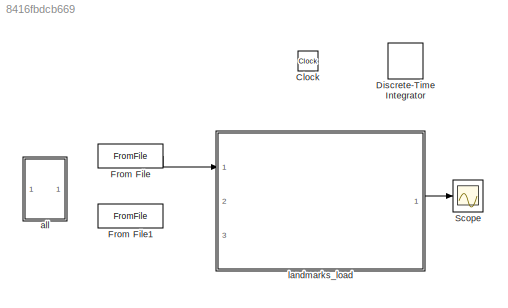
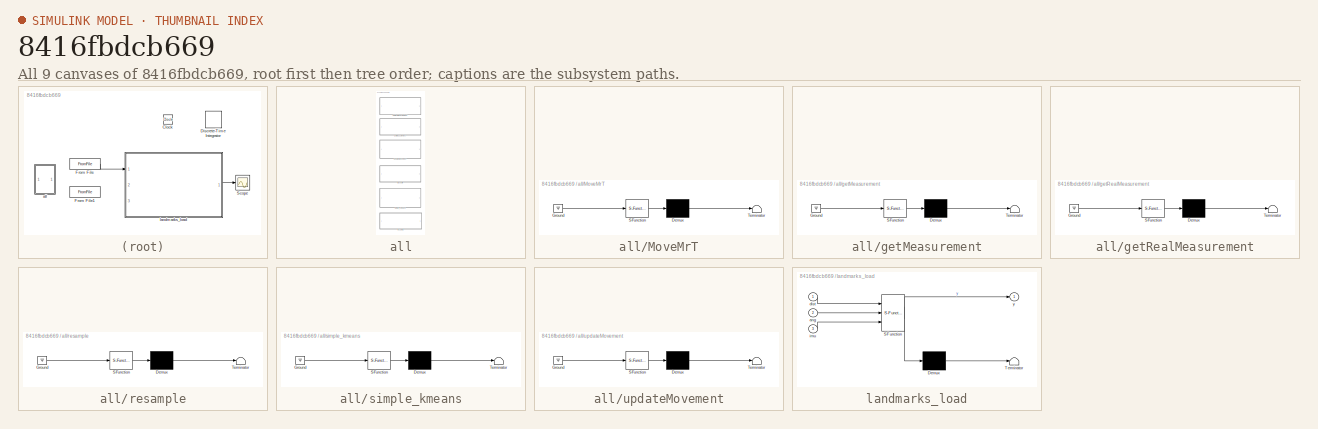
[diagram: thumbnail index - all 9 canvases of the model, root first then tree order]
MODEL slx_8416fbdcb669
KIND model
BLOCK [Clock] Clock
  Commented = on
BLOCK [DiscreteIntegrator] Discrete-Time Integrator
  Commented = on
  ICPrevOutput = DiscIntNeverNeededParam
  ICPrevScaledInput = DiscIntNeverNeededParam
  Ports = [1, 1]
BLOCK [FromFile] From File
  FileName = data1.mat
  SampleTime = 0
BLOCK [FromFile] From File1
  Commented = on
  FileName = LANDMARK_DATA_corrected.mat
  SampleTime = 0
BLOCK [Scope] Scope
  DataFormat = StructureWithTime
  Floating = off
  NumInputPorts = 1
  Ports = [1]
  SampleTime = 0
  ShowLegends = off
BLOCK [SubSystem] all
  Commented = on
  FunctionWithSeparateData = off
  MaskHideContents = off
  MinAlgLoopOccurrences = off
  Opaque = off
  Ports = []
  PropExecContextOutsideSubsystem = off
  RTWSystemCode = Auto
  RequestExecContextInheritance = off
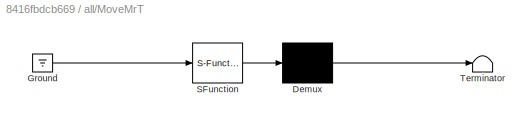
BLOCK [SubSystem] all/MoveMrT
  Commented = on
  ErrorFcn = Stateflow.Translate.translate
  FunctionWithSeparateData = off
  MaskHideContents = off
  MinAlgLoopOccurrences = off
  Opaque = off
  PermitHierarchicalResolution = ExplicitOnly
  Ports = []
  PropExecContextOutsideSubsystem = off
  RTWSystemCode = Auto
  RequestExecContextInheritance = off
  SFBlockType = MATLAB Function
  TreatAsAtomicUnit = on
BLOCK [Demux] all/MoveMrT/ Demux 
  Outputs = 1
  Ports = [1, 1]
BLOCK [Ground] all/MoveMrT/ Ground 
BLOCK [S-Function] all/MoveMrT/ SFunction 
  EnableBusSupport = on
  FunctionName = sf_sfun
  PortCounts = [1 1]
  Ports = [1, 1]
  Tag = Stateflow S-Function slam_check 4
BLOCK [Terminator] all/MoveMrT/ Terminator 
BLOCK [SubSystem] all/getMeasurement
  Commented = on
  ErrorFcn = Stateflow.Translate.translate
  FunctionWithSeparateData = off
  MaskHideContents = off
  MinAlgLoopOccurrences = off
  Opaque = off
  PermitHierarchicalResolution = ExplicitOnly
  Ports = []
  PropExecContextOutsideSubsystem = off
  RTWSystemCode = Auto
  RequestExecContextInheritance = off
  SFBlockType = MATLAB Function
  TreatAsAtomicUnit = on
BLOCK [Demux] all/getMeasurement/ Demux 
  Outputs = 1
  Ports = [1, 1]
BLOCK [Ground] all/getMeasurement/ Ground 
BLOCK [S-Function] all/getMeasurement/ SFunction 
  EnableBusSupport = on
  FunctionName = sf_sfun
  PortCounts = [1 1]
  Ports = [1, 1]
  Tag = Stateflow S-Function slam_check 1
BLOCK [Terminator] all/getMeasurement/ Terminator 
BLOCK [SubSystem] all/getRealMeasurement
  Commented = on
  ErrorFcn = Stateflow.Translate.translate
  FunctionWithSeparateData = off
  MaskHideContents = off
  MinAlgLoopOccurrences = off
  Opaque = off
  PermitHierarchicalResolution = ExplicitOnly
  Ports = []
  PropExecContextOutsideSubsystem = off
  RTWSystemCode = Auto
  RequestExecContextInheritance = off
  SFBlockType = MATLAB Function
  TreatAsAtomicUnit = on
BLOCK [Demux] all/getRealMeasurement/ Demux 
  Outputs = 1
  Ports = [1, 1]
BLOCK [Ground] all/getRealMeasurement/ Ground 
BLOCK [S-Function] all/getRealMeasurement/ SFunction 
  EnableBusSupport = on
  FunctionName = sf_sfun
  PortCounts = [1 1]
  Ports = [1, 1]
  Tag = Stateflow S-Function slam_check 2
BLOCK [Terminator] all/getRealMeasurement/ Terminator 
BLOCK [SubSystem] all/resample
  Commented = on
  ErrorFcn = Stateflow.Translate.translate
  FunctionWithSeparateData = off
  MaskHideContents = off
  MinAlgLoopOccurrences = off
  Opaque = off
  PermitHierarchicalResolution = ExplicitOnly
  Ports = []
  PropExecContextOutsideSubsystem = off
  RTWSystemCode = Auto
  RequestExecContextInheritance = off
  SFBlockType = MATLAB Function
  TreatAsAtomicUnit = on
BLOCK [Demux] all/resample/ Demux 
  Outputs = 1
  Ports = [1, 1]
BLOCK [Ground] all/resample/ Ground 
BLOCK [S-Function] all/resample/ SFunction 
  EnableBusSupport = on
  FunctionName = sf_sfun
  PortCounts = [1 1]
  Ports = [1, 1]
  Tag = Stateflow S-Function slam_check 5
BLOCK [Terminator] all/resample/ Terminator 
BLOCK [SubSystem] all/simple_kmeans
  Commented = on
  ErrorFcn = Stateflow.Translate.translate
  FunctionWithSeparateData = off
  MaskHideContents = off
  MinAlgLoopOccurrences = off
  Opaque = off
  PermitHierarchicalResolution = ExplicitOnly
  Ports = []
  PropExecContextOutsideSubsystem = off
  RTWSystemCode = Auto
  RequestExecContextInheritance = off
  SFBlockType = MATLAB Function
  TreatAsAtomicUnit = on
BLOCK [Demux] all/simple_kmeans/ Demux 
  Outputs = 1
  Ports = [1, 1]
BLOCK [Ground] all/simple_kmeans/ Ground 
BLOCK [S-Function] all/simple_kmeans/ SFunction 
  EnableBusSupport = on
  FunctionName = sf_sfun
  PortCounts = [1 1]
  Ports = [1, 1]
  Tag = Stateflow S-Function slam_check 6
BLOCK [Terminator] all/simple_kmeans/ Terminator 
BLOCK [SubSystem] all/updateMovement
  Commented = on
  ErrorFcn = Stateflow.Translate.translate
  FunctionWithSeparateData = off
  MaskHideContents = off
  MinAlgLoopOccurrences = off
  Opaque = off
  PermitHierarchicalResolution = ExplicitOnly
  Ports = []
  PropExecContextOutsideSubsystem = off
  RTWSystemCode = Auto
  RequestExecContextInheritance = off
  SFBlockType = MATLAB Function
  TreatAsAtomicUnit = on
BLOCK [Demux] all/updateMovement/ Demux 
  Outputs = 1
  Ports = [1, 1]
BLOCK [Ground] all/updateMovement/ Ground 
BLOCK [S-Function] all/updateMovement/ SFunction 
  EnableBusSupport = on
  FunctionName = sf_sfun
  PortCounts = [1 1]
  Ports = [1, 1]
  Tag = Stateflow S-Function slam_check 3
BLOCK [Terminator] all/updateMovement/ Terminator 
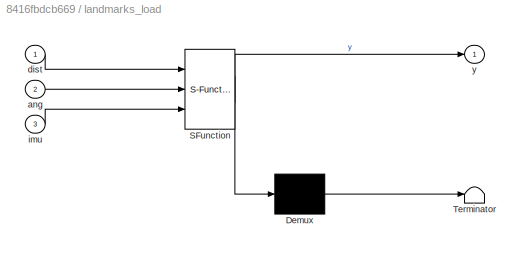
BLOCK [SubSystem] landmarks_load
  ErrorFcn = Stateflow.Translate.translate
  FunctionWithSeparateData = off
  MaskHideContents = off
  MinAlgLoopOccurrences = off
  Opaque = off
  PermitHierarchicalResolution = ExplicitOnly
  Ports = [3, 1]
  PropExecContextOutsideSubsystem = off
  RTWSystemCode = Auto
  RequestExecContextInheritance = off
  SFBlockType = MATLAB Function
  TreatAsAtomicUnit = on
BLOCK [Demux] landmarks_load/ Demux 
  Outputs = 1
  Ports = [1, 1]
BLOCK [S-Function] landmarks_load/ SFunction 
  EnableBusSupport = on
  FunctionName = sf_sfun
  PortCounts = [3 2]
  Ports = [3, 2]
  Tag = Stateflow S-Function slam_check 7
BLOCK [Terminator] landmarks_load/ Terminator 
BLOCK [Inport] landmarks_load/ang
  IconDisplay = Port number
  Port = 2
BLOCK [Inport] landmarks_load/dist
  IconDisplay = Port number
BLOCK [Inport] landmarks_load/imu
  IconDisplay = Port number
  Port = 3
BLOCK [Outport] landmarks_load/y
  IconDisplay = Port number
LINE From File:1 -> landmarks_load:1
LINE landmarks_load:1 -> Scope:1
